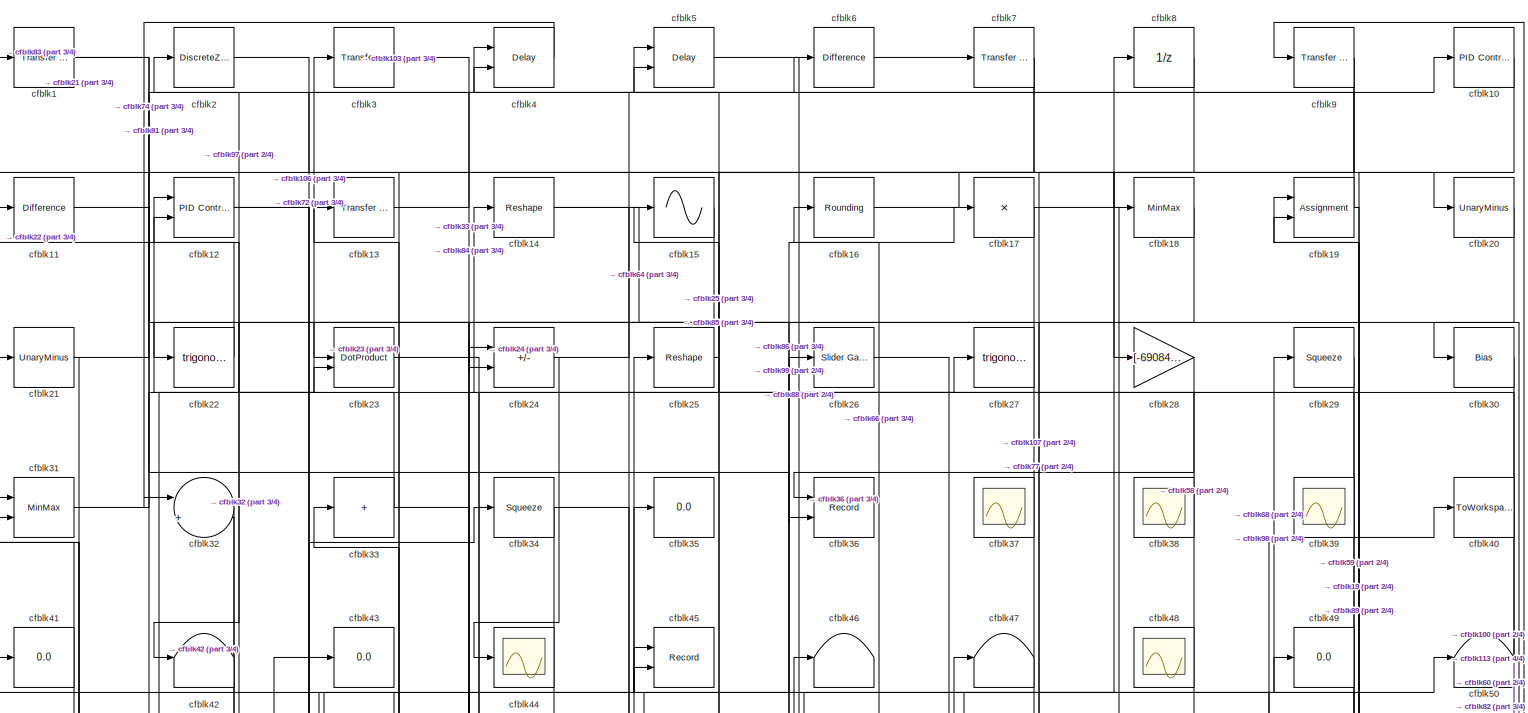
[diagram: root canvas - part 1/4, full width, top band]
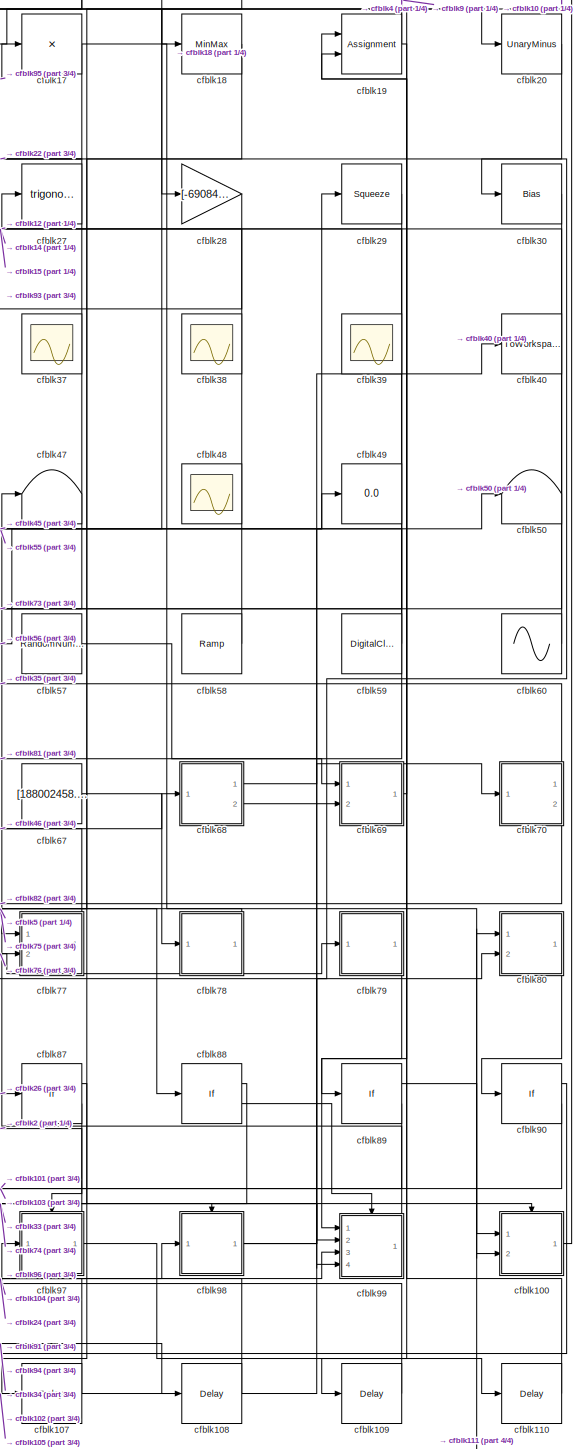
[diagram: root canvas - part 2/4, right side, full height]
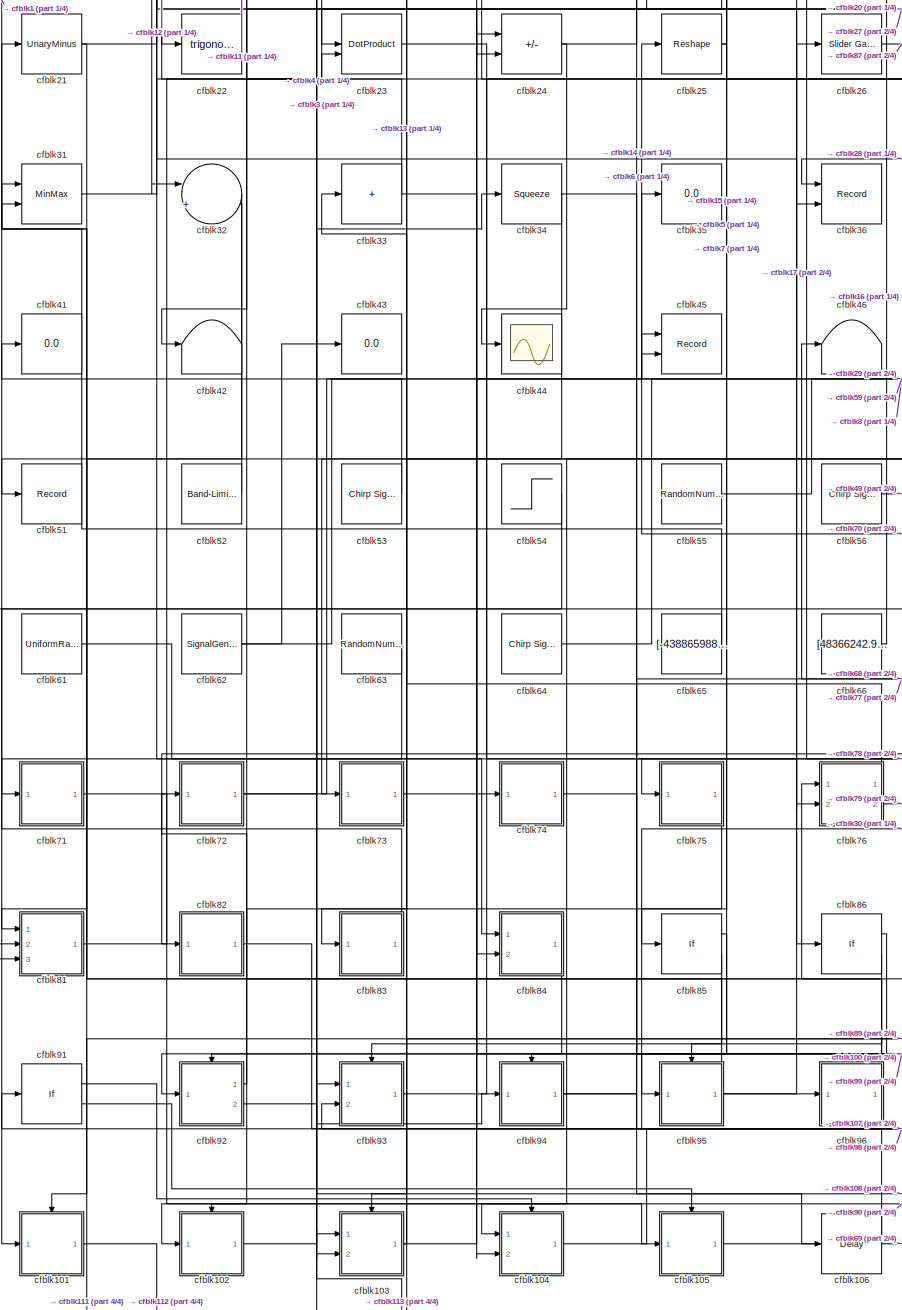
[diagram: root canvas - part 3/4, left side, full height]
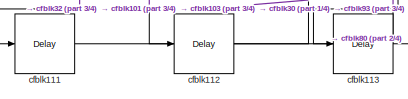
[diagram: root canvas - part 4/4, bottom left region]
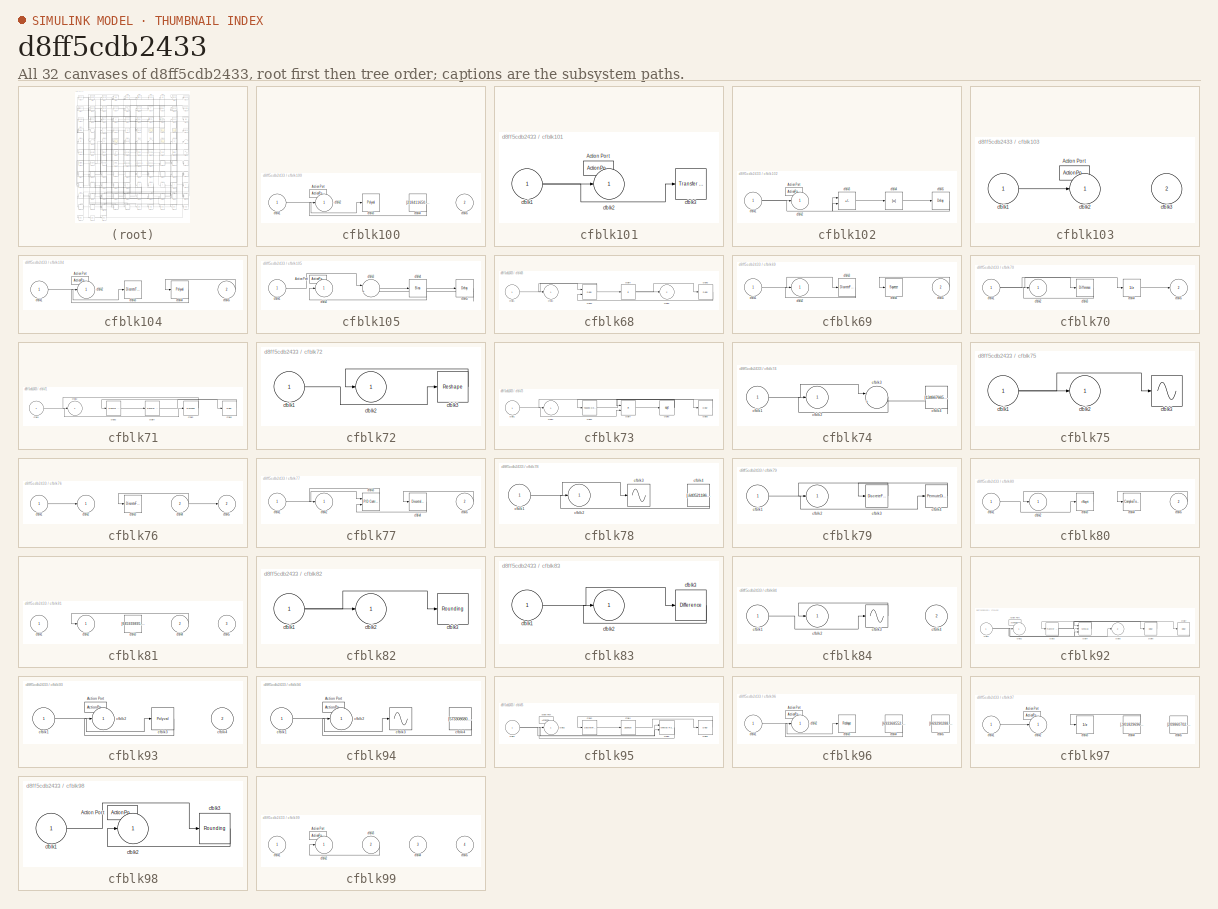
[diagram: thumbnail index - all 32 canvases of the model, root first then tree order]
MODEL slx_d8ff5cdb2433
KIND model
CONFIG AbsTol = auto
CONFIG EnableMultiTasking = off
CONFIG FixedStep = auto
CONFIG MaxStep = auto
CONFIG MinStep = auto
CONFIG RelTol = 1e-3
CONFIG SampleTimeConstraint = Unconstrained
CONFIG SolverName = VariableStepAuto
CONFIG StartTime = 0.0
CONFIG StopTime = 10.0
BLOCK [Reference] cfblk1  REF=simulink/Discrete/Transfer Fcn
First Order
  Ports = [1, 1]
  SourceBlock = simulink/Discrete/Transfer Fcn\nFirst Order
  SourceProductBaseCode = SL
  SourceType = First Order Transfer Fcn
BLOCK [Reference] cfblk10  REF=slpidlib/PID Controller
  Ports = [1, 1]
  SourceBlock = slpidlib/PID Controller
  SourceProductBaseCode = SL
  SourceType = PID 1dof
BLOCK [SubSystem] cfblk100
  Ports = [2, 1, 0, 0, 0, 0, 0, 1]
  RequestExecContextInheritance = off
  TreatAsAtomicUnit = on
BLOCK [ActionPort] cfblk100/Action Port
  ActionPortLabel = if(u1 >= 0)
BLOCK [Inport] cfblk100/cfblk1
BLOCK [Outport] cfblk100/cfblk2
BLOCK [Polyval] cfblk100/cfblk3
  Coefs = [ +2.081618890e-019, -1.441693666e-014, +4.719686976e-010, -8.536869453e-006, +1.621573104e-001, -8.087801117e+001 ]
BLOCK [Constant] cfblk100/cfblk4
  SampleTime = 1
  Value = [218411650.649199]
BLOCK [Inport] cfblk100/cfblk5
  Port = 2
BLOCK [SubSystem] cfblk101
  Ports = [1, 1, 0, 0, 0, 0, 0, 1]
  RequestExecContextInheritance = off
  TreatAsAtomicUnit = on
BLOCK [ActionPort] cfblk101/Action Port
  ActionPortLabel = else
BLOCK [Inport] cfblk101/cfblk1
BLOCK [Outport] cfblk101/cfblk2
BLOCK [Reference] cfblk101/cfblk3  REF=simulink/Discrete/Transfer Fcn
Real Zero
  Ports = [1, 1]
  SourceBlock = simulink/Discrete/Transfer Fcn\nReal Zero
  SourceProductBaseCode = SL
  SourceType = Transfer Fcn Real Zero
BLOCK [SubSystem] cfblk102
  Ports = [1, 1, 0, 0, 0, 0, 0, 1]
  RequestExecContextInheritance = off
  TreatAsAtomicUnit = on
BLOCK [ActionPort] cfblk102/Action Port
  ActionPortLabel = if(u1 >= 0)
BLOCK [Inport] cfblk102/cfblk1
BLOCK [Outport] cfblk102/cfblk2
BLOCK [Sum] cfblk102/cfblk3
  IconShape = rectangular
  Inputs = +-
  Ports = [2, 1]
BLOCK [Abs] cfblk102/cfblk4
  SaturateOnIntegerOverflow = off
BLOCK [Delay] cfblk102/cfblk5
  InputPortMap = u0
  Ports = [1, 1]
BLOCK [SubSystem] cfblk103
  Ports = [2, 1, 0, 0, 0, 0, 0, 1]
  RequestExecContextInheritance = off
  TreatAsAtomicUnit = on
BLOCK [ActionPort] cfblk103/Action Port
  ActionPortLabel = else
BLOCK [Inport] cfblk103/cfblk1
BLOCK [Outport] cfblk103/cfblk2
BLOCK [Inport] cfblk103/cfblk3
  Port = 2
BLOCK [SubSystem] cfblk104
  Ports = [2, 1, 0, 0, 0, 0, 0, 1]
  RequestExecContextInheritance = off
  TreatAsAtomicUnit = on
BLOCK [ActionPort] cfblk104/Action Port
  ActionPortLabel = if(u1 >= 0)
BLOCK [Inport] cfblk104/cfblk1
BLOCK [Outport] cfblk104/cfblk2
BLOCK [DiscreteTransferFcn] cfblk104/cfblk3
  InputPortMap = u0
  Ports = [1, 1]
BLOCK [Polyval] cfblk104/cfblk4
  Coefs = [ +2.081618890e-019, -1.441693666e-014, +4.719686976e-010, -8.536869453e-006, +1.621573104e-001, -8.087801117e+001 ]
BLOCK [Inport] cfblk104/cfblk5
  Port = 2
BLOCK [SubSystem] cfblk105
  Ports = [1, 1, 0, 0, 0, 0, 0, 1]
  RequestExecContextInheritance = off
  TreatAsAtomicUnit = on
BLOCK [ActionPort] cfblk105/Action Port
  ActionPortLabel = else
BLOCK [Inport] cfblk105/cfblk1
BLOCK [Outport] cfblk105/cfblk2
BLOCK [Sum] cfblk105/cfblk3
  Inputs = |++
  Ports = [2, 1]
BLOCK [Bias] cfblk105/cfblk4
  Bias = [586134376.384621]
  SaturateOnIntegerOverflow = off
BLOCK [Delay] cfblk105/cfblk5
  InputPortMap = u0
  Ports = [1, 1]
BLOCK [Delay] cfblk106
  InputPortMap = u0
  Ports = [1, 1]
  SampleTime = 1
BLOCK [Delay] cfblk107
  InputPortMap = u0
  Ports = [1, 1]
  SampleTime = 1
BLOCK [Delay] cfblk108
  InputPortMap = u0
  Ports = [1, 1]
  SampleTime = 1
BLOCK [Delay] cfblk109
  InputPortMap = u0
  Ports = [1, 1]
  SampleTime = 1
BLOCK [Reference] cfblk11  REF=simulink/Discrete/Difference
  Ports = [1, 1]
  SourceBlock = simulink/Discrete/Difference
  SourceProductBaseCode = SL
  SourceType = Difference
BLOCK [Delay] cfblk110
  InputPortMap = u0
  Ports = [1, 1]
  SampleTime = 1
BLOCK [Delay] cfblk111
  InputPortMap = u0
  Ports = [1, 1]
  SampleTime = 1
BLOCK [Delay] cfblk112
  InputPortMap = u0
  Ports = [1, 1]
  SampleTime = 1
BLOCK [Delay] cfblk113
  InputPortMap = u0
  Ports = [1, 1]
  SampleTime = 1
BLOCK [Reference] cfblk12  REF=slpidlib/PID Controller (2DOF)
  Ports = [2, 1]
  SourceBlock = slpidlib/PID Controller (2DOF)
  SourceProductBaseCode = SL
  SourceType = PID 2dof
BLOCK [Reference] cfblk13  REF=simulink/Discrete/Transfer Fcn
Real Zero
  Ports = [1, 1]
  SourceBlock = simulink/Discrete/Transfer Fcn\nReal Zero
  SourceProductBaseCode = SL
  SourceType = Transfer Fcn Real Zero
BLOCK [Reshape] cfblk14
  Ports = [1, 1]
BLOCK [Sin] cfblk15
  Ports = [1, 1]
  SampleTime = 0
  TimeSource = Use external signal
BLOCK [Rounding] cfblk16
BLOCK [Product] cfblk17
  Inputs = *
  Ports = [1, 1]
BLOCK [MinMax] cfblk18
  Function = max
  Ports = [1, 1]
BLOCK [Assignment] cfblk19
  DiagnosticForDimensions = Warning
  IndexOptions = Index vector (dialog)
  Indices = 1
  OutputSizes = 1
  Ports = [2, 1]
BLOCK [DiscreteZeroPole] cfblk2
  Gain = 1
  Poles = [0 0.5]
BLOCK [UnaryMinus] cfblk20
BLOCK [UnaryMinus] cfblk21
BLOCK [Trigonometry] cfblk22
  Ports = [1, 1]
BLOCK [DotProduct] cfblk23
  OutDataTypeStr = Inherit: Inherit via internal rule
BLOCK [Sum] cfblk24
  IconShape = rectangular
  Inputs = +-
  Ports = [2, 1]
BLOCK [Reshape] cfblk25
  Ports = [1, 1]
BLOCK [Reference] cfblk26  REF=simulink/Math
Operations/Slider
Gain
  Ports = [1, 1]
  SourceBlock = simulink/Math\nOperations/Slider\nGain
  SourceProductBaseCode = SL
  SourceType = Slider Gain
BLOCK [Trigonometry] cfblk27
  Ports = [1, 1]
BLOCK [Gain] cfblk28
  Gain = [-690841397.584231]
BLOCK [Squeeze] cfblk29
BLOCK [Reference] cfblk3  REF=simulink/Discrete/Transfer Fcn
Lead or Lag
  Ports = [1, 1]
  SourceBlock = simulink/Discrete/Transfer Fcn\nLead or Lag
  SourceProductBaseCode = SL
  SourceType = Lead or Lag Compensator
BLOCK [Bias] cfblk30
  Bias = [-540206090.323763]
  SaturateOnIntegerOverflow = off
BLOCK [MinMax] cfblk31
  Inputs = 2
  Ports = [2, 1]
BLOCK [Sum] cfblk32
  Inputs = |++
  Ports = [2, 1]
BLOCK [Sum] cfblk33
  IconShape = rectangular
  Inputs = +
  Ports = [1, 1]
BLOCK [Squeeze] cfblk34
BLOCK [Display] cfblk35
  Decimation = 1
  Ports = [1]
BLOCK [Record] cfblk36
  CompatibilityTag = XY
  FileSettingsInternal = {"entries":[{"content":{"excelSettings":{"content":{},"type":"Streamout.ExcelSettings"}},"type":"Streamout.FileSettingStorage","uuid":"f60e0e7e-50e4-411b-8857-de84289db194"}],"packageUris":["http://schema.mathworks.com/mf0/streamout_blocks/R2020a"],"version":"1.0"}
  Layout = [1 1]
  Ports = [2]
  SignalsInternal = {"entries":[{"content":{"signals":[{"content":{"blockPath":["sampleModel203/cfblk36"],"channel":[],"dimensions":[1],"domain":"sampleModel203/cfblk36","lineColor":"#a2142f","plots":[1],"port":1,"sid":[""],"signalID":7736,"signalName":"cfblk28"},"type":"RecordBlkView.Signal","uuid":"ca01ba28-278a-4e59-8f68-9e270c9db018"},{"content":{"blockPath":["sampleModel203/cfblk36"],"channel":[],"dimensions":[1...<+382ch>
  VisualizationBindings = {"xyplotplugin":{"info":[{"series":[{"bindingParametersList":[{"parameter":"X-Axis","signalID":7736,"signalName":"cfblk28"},{"parameter":"Y-Axis","signalID":7740,"signalName":"cfblk1"}],"seriesID":62556}],"subplotID":1}]}}
BLOCK [Scope] cfblk37
  Floating = on
  NumInputPorts = 1
  Ports = []
BLOCK [Scope] cfblk38
  Floating = on
  NumInputPorts = 1
  Ports = []
BLOCK [Scope] cfblk39
  Floating = on
  NumInputPorts = 1
  Ports = []
BLOCK [Delay] cfblk4
  InputPortMap = u0,e6
  Ports = [2, 1]
  SampleTime = 1
  ShowEnablePort = on
BLOCK [ToWorkspace] cfblk40
  FixptAsFi = on
  MaxDataPoints = inf
  Ports = [1]
  SampleTime = -1
  SaveFormat = Timeseries
  VariableName = svbpxuz
BLOCK [Display] cfblk41
  Decimation = 1
  Ports = [1]
BLOCK [Terminator] cfblk42
BLOCK [Display] cfblk43
  Decimation = 1
  Ports = [1]
BLOCK [Scope] cfblk44
  Floating = off
  NumInputPorts = 1
  Ports = [1]
BLOCK [Record] cfblk45
  CompatibilityTag = XY
  FileSettingsInternal = {"entries":[{"content":{"excelSettings":{"content":{},"type":"Streamout.ExcelSettings"}},"type":"Streamout.FileSettingStorage","uuid":"4e68081a-3d5f-4c48-8c75-22d124a70274"}],"packageUris":["http://schema.mathworks.com/mf0/streamout_blocks/R2020a"],"version":"1.0"}
  Layout = [1 1]
  Ports = [2]
  SignalsInternal = {"entries":[{"content":{"signals":[{"content":{"blockPath":["sampleModel203/cfblk45"],"channel":[],"dimensions":[1],"domain":"sampleModel203/cfblk45","lineColor":"#a2142f","plots":[1],"port":1,"sid":[""],"signalID":7744,"signalName":"cfblk59"},"type":"RecordBlkView.Signal","uuid":"9405ce42-ea04-4003-ae79-2d43fde3a1a3"},{"content":{"blockPath":["sampleModel203/cfblk45"],"channel":[],"dimensions":[1...<+384ch>
  VisualizationBindings = {"xyplotplugin":{"info":[{"series":[{"bindingParametersList":[{"parameter":"X-Axis","signalID":7744,"signalName":"cfblk59"},{"parameter":"Y-Axis","signalID":7748,"signalName":"cfblk103"}],"seriesID":22743}],"subplotID":1}]}}
BLOCK [Terminator] cfblk46
BLOCK [Terminator] cfblk47
BLOCK [Scope] cfblk48
  Floating = on
  NumInputPorts = 1
  Ports = []
BLOCK [Display] cfblk49
  Decimation = 1
  Ports = [1]
BLOCK [Delay] cfblk5
  InputPortMap = u0,e6
  Ports = [2, 1]
  SampleTime = 1
  ShowEnablePort = on
BLOCK [Terminator] cfblk50
BLOCK [Record] cfblk51
  FileSettingsInternal = {"entries":[{"content":{"excelSettings":{"content":{},"type":"Streamout.ExcelSettings"}},"type":"Streamout.FileSettingStorage","uuid":"15b467fb-187d-4d22-9db3-1ab9c270faad"}],"packageUris":["http://schema.mathworks.com/mf0/streamout_blocks/R2020a"],"version":"1.0"}
  Ports = [1]
  SignalsInternal = {"entries":[{"content":{"signals":[{"content":{"blockPath":["sampleModel203/cfblk51"],"channel":[],"dimensions":[1],"domain":"sampleModel203/cfblk51","lineColor":"#d95319","plots":[1],"port":1,"sid":[""],"signalID":7752,"signalName":"cfblk34"},"type":"RecordBlkView.Signal","uuid":"d294c60a-55e4-408c-9dbb-0466e6ab661d"}]},"type":"RecordBlkView.InputSignals","uuid":"40f0c118-43a9-4255-9852-1e3ccaa29...<+97ch>
  VisualizationBindings = {"sparklinesplugin":{"info":[{"bindingParametersList":[],"subplotID":1}]}}
BLOCK [Reference] cfblk52  REF=simulink/Sources/Band-Limited
White Noise
  Ports = [0, 1]
  SourceBlock = simulink/Sources/Band-Limited\nWhite Noise
  SourceProductBaseCode = SL
  SourceType = Band-Limited White Noise.
BLOCK [Reference] cfblk53  REF=simulink/Sources/Chirp Signal
  Ports = [0, 1]
  SourceBlock = simulink/Sources/Chirp Signal
  SourceProductBaseCode = SL
  SourceType = chirp
BLOCK [Step] cfblk54
  After = [-476848103.359649]
  Before = [-843360789.069054]
  SampleTime = 0
  Time = [20.000000]
BLOCK [RandomNumber] cfblk55
  Mean = [-65297.782331]
  SampleTime = 0.1
  Seed = [385991581.000000]
  Variance = [65306.372264]
BLOCK [Reference] cfblk56  REF=simulink/Sources/Chirp Signal
  Ports = [0, 1]
  SourceBlock = simulink/Sources/Chirp Signal
  SourceProductBaseCode = SL
  SourceType = chirp
BLOCK [RandomNumber] cfblk57
  Mean = [-91246.864257]
  SampleTime = 0.1
  Seed = [558666441.000000]
  Variance = [79928.069282]
BLOCK [Reference] cfblk58  REF=simulink/Sources/Ramp
  Ports = [0, 1]
  SourceBlock = simulink/Sources/Ramp
  SourceProductBaseCode = SL
  SourceType = Ramp
BLOCK [DigitalClock] cfblk59
BLOCK [Reference] cfblk6  REF=simulink/Discrete/Difference
  Ports = [1, 1]
  SourceBlock = simulink/Discrete/Difference
  SourceProductBaseCode = SL
  SourceType = Difference
BLOCK [Sin] cfblk60
  Amplitude = [174575589.111847]
  Bias = [828450703.663785]
  Ports = [0, 1]
  SampleTime = 0
BLOCK [UniformRandomNumber] cfblk61
  Maximum = [9985745363.813883]
  Minimum = [-3984938994.437546]
  SampleTime = 0.1
  Seed = [61048124.000000]
BLOCK [SignalGenerator] cfblk62
  Amplitude = [661382028.748388]
  Ports = [0, 1]
BLOCK [RandomNumber] cfblk63
  Mean = [68679.092344]
  SampleTime = 0.1
  Seed = [966951569.000000]
  Variance = [85378.887628]
BLOCK [Reference] cfblk64  REF=simulink/Sources/Chirp Signal
  Ports = [0, 1]
  SourceBlock = simulink/Sources/Chirp Signal
  SourceProductBaseCode = SL
  SourceType = chirp
BLOCK [Constant] cfblk65
  SampleTime = 1
  Value = [-438865988.482538]
BLOCK [Constant] cfblk66
  SampleTime = 1
  Value = [48366242.935575]
BLOCK [Constant] cfblk67
  SampleTime = 1
  Value = [188002458.199918]
BLOCK [SubSystem] cfblk68
  Ports = [1, 2]
  RequestExecContextInheritance = off
BLOCK [Inport] cfblk68/cfblk1
BLOCK [Outport] cfblk68/cfblk2
BLOCK [Delay] cfblk68/cfblk3
  InputPortMap = u0,e6
  Ports = [2, 1]
  SampleTime = 1
  ShowEnablePort = on
BLOCK [Sum] cfblk68/cfblk4
  IconShape = rectangular
  Inputs = +
  Ports = [1, 1]
BLOCK [Outport] cfblk68/cfblk5
  Port = 2
BLOCK [Delay] cfblk68/cfblk6
  InputPortMap = u0
  Ports = [1, 1]
  SampleTime = 1
BLOCK [SubSystem] cfblk69
  Ports = [2, 1]
  RequestExecContextInheritance = off
BLOCK [Inport] cfblk69/cfblk1
BLOCK [Outport] cfblk69/cfblk2
BLOCK [DiscreteFir] cfblk69/cfblk3
  InputPortMap = u0
  OutputPortMap = o0
  Ports = [1, 1]
  SampleTime = 1
BLOCK [Squeeze] cfblk69/cfblk4
BLOCK [Inport] cfblk69/cfblk5
  Port = 2
BLOCK [Reference] cfblk7  REF=simulink/Discrete/Transfer Fcn
Real Zero
  Ports = [1, 1]
  SourceBlock = simulink/Discrete/Transfer Fcn\nReal Zero
  SourceProductBaseCode = SL
  SourceType = Transfer Fcn Real Zero
BLOCK [SubSystem] cfblk70
  Ports = [1, 2]
  RequestExecContextInheritance = off
BLOCK [Inport] cfblk70/cfblk1
BLOCK [Outport] cfblk70/cfblk2
BLOCK [Reference] cfblk70/cfblk3  REF=simulink/Discrete/Difference
  Ports = [1, 1]
  SourceBlock = simulink/Discrete/Difference
  SourceProductBaseCode = SL
  SourceType = Difference
BLOCK [UnitDelay] cfblk70/cfblk4
  HasFrameUpgradeWarning = on
BLOCK [Outport] cfblk70/cfblk5
  Port = 2
BLOCK [SubSystem] cfblk71
  Ports = [1, 1]
  RequestExecContextInheritance = off
BLOCK [Inport] cfblk71/cfblk1
BLOCK [Outport] cfblk71/cfblk2
BLOCK [Reference] cfblk71/cfblk3  REF=simulink/Discrete/Transfer Fcn
Real Zero
  Ports = [1, 1]
  SourceBlock = simulink/Discrete/Transfer Fcn\nReal Zero
  SourceProductBaseCode = SL
  SourceType = Transfer Fcn Real Zero
BLOCK [Reference] cfblk71/cfblk4  REF=simulink/Discrete/Transfer Fcn
First Order
  Ports = [1, 1]
  SourceBlock = simulink/Discrete/Transfer Fcn\nFirst Order
  SourceProductBaseCode = SL
  SourceType = First Order Transfer Fcn
BLOCK [Reshape] cfblk71/cfblk5
  Ports = [1, 1]
BLOCK [Delay] cfblk71/cfblk6
  InputPortMap = u0
  Ports = [1, 1]
  SampleTime = 1
BLOCK [SubSystem] cfblk72
  Ports = [1, 1]
  RequestExecContextInheritance = off
BLOCK [Inport] cfblk72/cfblk1
BLOCK [Outport] cfblk72/cfblk2
BLOCK [Reshape] cfblk72/cfblk3
  Ports = [1, 1]
BLOCK [SubSystem] cfblk73
  Ports = [1, 1]
  RequestExecContextInheritance = off
BLOCK [Inport] cfblk73/cfblk1
BLOCK [Outport] cfblk73/cfblk2
BLOCK [Reference] cfblk73/cfblk3  REF=simulink/Discrete/Tapped Delay
  Ports = [1, 1]
  SourceBlock = simulink/Discrete/Tapped Delay
  SourceProductBaseCode = SL
  SourceType = Tapped Delay Line
BLOCK [Product] cfblk73/cfblk4
  Ports = [2, 1]
BLOCK [Sqrt] cfblk73/cfblk5
BLOCK [Delay] cfblk73/cfblk6
  InputPortMap = u0
  Ports = [1, 1]
  SampleTime = 1
BLOCK [SubSystem] cfblk74
  Ports = [1, 1]
  RequestExecContextInheritance = off
BLOCK [Inport] cfblk74/cfblk1
BLOCK [Outport] cfblk74/cfblk2
BLOCK [Sum] cfblk74/cfblk3
  Inputs = |++
  Ports = [2, 1]
BLOCK [Constant] cfblk74/cfblk4
  SampleTime = 1
  Value = [134667665.474068]
BLOCK [SubSystem] cfblk75
  Ports = [1, 1]
  RequestExecContextInheritance = off
BLOCK [Inport] cfblk75/cfblk1
BLOCK [Outport] cfblk75/cfblk2
BLOCK [Sin] cfblk75/cfblk3
  Ports = [1, 1]
  SampleTime = 0
  TimeSource = Use external signal
BLOCK [SubSystem] cfblk76
  Ports = [2, 2]
  RequestExecContextInheritance = off
BLOCK [Inport] cfblk76/cfblk1
BLOCK [Outport] cfblk76/cfblk2
BLOCK [DiscreteFilter] cfblk76/cfblk3
  InputPortMap = u0
  Ports = [1, 1]
  SampleTime = 1
BLOCK [Inport] cfblk76/cfblk4
  Port = 2
BLOCK [Outport] cfblk76/cfblk5
  Port = 2
BLOCK [SubSystem] cfblk77
  Ports = [2, 1]
  RequestExecContextInheritance = off
BLOCK [Inport] cfblk77/cfblk1
BLOCK [Outport] cfblk77/cfblk2
BLOCK [Reference] cfblk77/cfblk3  REF=slpidlib/PID Controller (2DOF)
  Ports = [2, 1]
  SourceBlock = slpidlib/PID Controller (2DOF)
  SourceProductBaseCode = SL
  SourceType = PID 2dof
BLOCK [DiscreteIntegrator] cfblk77/cfblk4
  ICPrevOutput = DiscIntNeverNeededParam
  ICPrevScaledInput = DiscIntNeverNeededParam
  InitialConditionSetting = Auto
  Ports = [1, 1]
BLOCK [Inport] cfblk77/cfblk5
  Port = 2
BLOCK [SubSystem] cfblk78
  Ports = [1, 1]
  RequestExecContextInheritance = off
BLOCK [Inport] cfblk78/cfblk1
BLOCK [Outport] cfblk78/cfblk2
BLOCK [Sin] cfblk78/cfblk3
  Ports = [1, 1]
  SampleTime = 0
  TimeSource = Use external signal
BLOCK [Constant] cfblk78/cfblk4
  SampleTime = 1
  Value = [-640521186.621114]
BLOCK [SubSystem] cfblk79
  Ports = [1, 1]
  RequestExecContextInheritance = off
BLOCK [Inport] cfblk79/cfblk1
BLOCK [Outport] cfblk79/cfblk2
BLOCK [DiscreteFilter] cfblk79/cfblk3
  InputPortMap = u0
  Ports = [1, 1]
  SampleTime = 1
BLOCK [PermuteDimensions] cfblk79/cfblk4
BLOCK [UnitDelay] cfblk8
  HasFrameUpgradeWarning = on
BLOCK [SubSystem] cfblk80
  Ports = [2, 1]
  RequestExecContextInheritance = off
BLOCK [Inport] cfblk80/cfblk1
BLOCK [Outport] cfblk80/cfblk2
BLOCK [Sqrt] cfblk80/cfblk3
  AlgorithmType = Newton-Raphson
  Operator = rSqrt
BLOCK [ComplexToRealImag] cfblk80/cfblk4
  Ports = [1, 2]
BLOCK [Inport] cfblk80/cfblk5
  Port = 2
BLOCK [SubSystem] cfblk81
  Ports = [3, 1]
  RequestExecContextInheritance = off
BLOCK [Inport] cfblk81/cfblk1
BLOCK [Outport] cfblk81/cfblk2
BLOCK [Constant] cfblk81/cfblk3
  SampleTime = 1
  Value = [685939895.207398]
BLOCK [Inport] cfblk81/cfblk4
  Port = 2
BLOCK [Inport] cfblk81/cfblk5
  Port = 3
BLOCK [SubSystem] cfblk82
  Ports = [1, 1]
  RequestExecContextInheritance = off
BLOCK [Inport] cfblk82/cfblk1
BLOCK [Outport] cfblk82/cfblk2
BLOCK [Rounding] cfblk82/cfblk3
BLOCK [SubSystem] cfblk83
  Ports = [1, 1]
  RequestExecContextInheritance = off
BLOCK [Inport] cfblk83/cfblk1
BLOCK [Outport] cfblk83/cfblk2
BLOCK [Reference] cfblk83/cfblk3  REF=simulink/Discrete/Difference
  Ports = [1, 1]
  SourceBlock = simulink/Discrete/Difference
  SourceProductBaseCode = SL
  SourceType = Difference
BLOCK [SubSystem] cfblk84
  Ports = [2, 1]
  RequestExecContextInheritance = off
BLOCK [Inport] cfblk84/cfblk1
BLOCK [Outport] cfblk84/cfblk2
BLOCK [Sin] cfblk84/cfblk3
  Ports = [1, 1]
  SampleTime = 0
  TimeSource = Use external signal
BLOCK [Inport] cfblk84/cfblk4
  Port = 2
BLOCK [If] cfblk85
  IfExpression = u1 >= 0
  Ports = [1, 2]
  SampleTime = 1
BLOCK [If] cfblk86
  IfExpression = u1 >= 0
  Ports = [1, 2]
  SampleTime = 1
BLOCK [If] cfblk87
  IfExpression = u1 >= 0
  Ports = [1, 2]
  SampleTime = 1
BLOCK [If] cfblk88
  IfExpression = u1 >= 0
  Ports = [1, 2]
  SampleTime = 1
BLOCK [If] cfblk89
  IfExpression = u1 >= 0
  Ports = [1, 2]
  SampleTime = 1
BLOCK [Reference] cfblk9  REF=simulink/Discrete/Transfer Fcn
Lead or Lag
  Ports = [1, 1]
  SourceBlock = simulink/Discrete/Transfer Fcn\nLead or Lag
  SourceProductBaseCode = SL
  SourceType = Lead or Lag Compensator
BLOCK [If] cfblk90
  IfExpression = u1 >= 0
  Ports = [1, 2]
  SampleTime = 1
BLOCK [If] cfblk91
  IfExpression = u1 >= 0
  Ports = [1, 2]
  SampleTime = 1
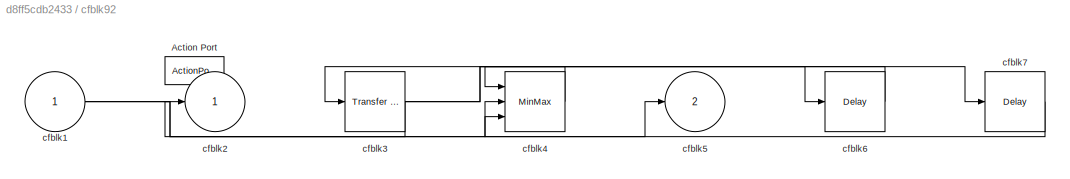
BLOCK [SubSystem] cfblk92
  Ports = [1, 2, 0, 0, 0, 0, 0, 1]
  RequestExecContextInheritance = off
  TreatAsAtomicUnit = on
BLOCK [ActionPort] cfblk92/Action Port
  ActionPortLabel = if(u1 >= 0)
BLOCK [Inport] cfblk92/cfblk1
BLOCK [Outport] cfblk92/cfblk2
BLOCK [Reference] cfblk92/cfblk3  REF=simulink/Discrete/Transfer Fcn
Lead or Lag
  Ports = [1, 1]
  SourceBlock = simulink/Discrete/Transfer Fcn\nLead or Lag
  SourceProductBaseCode = SL
  SourceType = Lead or Lag Compensator
BLOCK [MinMax] cfblk92/cfblk4
  Inputs = 3
  Ports = [3, 1]
BLOCK [Outport] cfblk92/cfblk5
  Port = 2
BLOCK [Delay] cfblk92/cfblk6
  InputPortMap = u0
  Ports = [1, 1]
BLOCK [Delay] cfblk92/cfblk7
  InputPortMap = u0
  Ports = [1, 1]
BLOCK [SubSystem] cfblk93
  Ports = [2, 1, 0, 0, 0, 0, 0, 1]
  RequestExecContextInheritance = off
  TreatAsAtomicUnit = on
BLOCK [ActionPort] cfblk93/Action Port
  ActionPortLabel = else
BLOCK [Inport] cfblk93/cfblk1
BLOCK [Outport] cfblk93/cfblk2
BLOCK [Polyval] cfblk93/cfblk3
  Coefs = [ +2.081618890e-019, -1.441693666e-014, +4.719686976e-010, -8.536869453e-006, +1.621573104e-001, -8.087801117e+001 ]
BLOCK [Inport] cfblk93/cfblk4
  Port = 2
BLOCK [SubSystem] cfblk94
  Ports = [1, 1, 0, 0, 0, 0, 0, 1]
  RequestExecContextInheritance = off
  TreatAsAtomicUnit = on
BLOCK [ActionPort] cfblk94/Action Port
  ActionPortLabel = if(u1 >= 0)
BLOCK [Inport] cfblk94/cfblk1
BLOCK [Outport] cfblk94/cfblk2
BLOCK [Sin] cfblk94/cfblk3
  Ports = [1, 1]
  SampleTime = 0
  TimeSource = Use external signal
BLOCK [Constant] cfblk94/cfblk4
  SampleTime = 1
  Value = [573308680.084131]
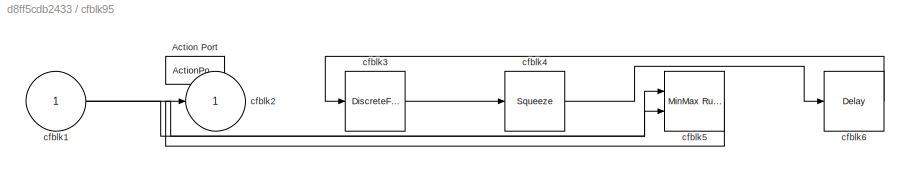
BLOCK [SubSystem] cfblk95
  Ports = [1, 1, 0, 0, 0, 0, 0, 1]
  RequestExecContextInheritance = off
  TreatAsAtomicUnit = on
BLOCK [ActionPort] cfblk95/Action Port
  ActionPortLabel = else
BLOCK [Inport] cfblk95/cfblk1
BLOCK [Outport] cfblk95/cfblk2
BLOCK [DiscreteFir] cfblk95/cfblk3
  InputPortMap = u0
  OutputPortMap = o0
  Ports = [1, 1]
BLOCK [Squeeze] cfblk95/cfblk4
BLOCK [Reference] cfblk95/cfblk5  REF=simulink/Math
Operations/MinMax
Running
Resettable
  Ports = [2, 1]
  SourceBlock = simulink/Math\nOperations/MinMax\nRunning\nResettable
  SourceProductBaseCode = SL
  SourceType = MinMax Running Resettable
BLOCK [Delay] cfblk95/cfblk6
  InputPortMap = u0
  Ports = [1, 1]
BLOCK [SubSystem] cfblk96
  Ports = [1, 1, 0, 0, 0, 0, 0, 1]
  RequestExecContextInheritance = off
  TreatAsAtomicUnit = on
BLOCK [ActionPort] cfblk96/Action Port
  ActionPortLabel = if(u1 >= 0)
BLOCK [Inport] cfblk96/cfblk1
BLOCK [Outport] cfblk96/cfblk2
BLOCK [Reshape] cfblk96/cfblk3
  Ports = [1, 1]
BLOCK [Constant] cfblk96/cfblk4
  SampleTime = 1
  Value = [693368552.778145]
BLOCK [Constant] cfblk96/cfblk5
  SampleTime = 1
  Value = [869290288.110064]
BLOCK [SubSystem] cfblk97
  Ports = [1, 1, 0, 0, 0, 0, 0, 1]
  RequestExecContextInheritance = off
  TreatAsAtomicUnit = on
BLOCK [ActionPort] cfblk97/Action Port
  ActionPortLabel = else
BLOCK [Inport] cfblk97/cfblk1
BLOCK [Outport] cfblk97/cfblk2
BLOCK [UnitDelay] cfblk97/cfblk3
  HasFrameUpgradeWarning = on
  SampleTime = -1
BLOCK [Constant] cfblk97/cfblk4
  SampleTime = 1
  Value = [-901829696.592009]
BLOCK [Constant] cfblk97/cfblk5
  SampleTime = 1
  Value = [209860702.377779]
BLOCK [SubSystem] cfblk98
  Ports = [1, 1, 0, 0, 0, 0, 0, 1]
  RequestExecContextInheritance = off
  TreatAsAtomicUnit = on
BLOCK [ActionPort] cfblk98/Action Port
  ActionPortLabel = if(u1 >= 0)
BLOCK [Inport] cfblk98/cfblk1
BLOCK [Outport] cfblk98/cfblk2
BLOCK [Rounding] cfblk98/cfblk3
BLOCK [SubSystem] cfblk99
  Ports = [4, 1, 0, 0, 0, 0, 0, 1]
  RequestExecContextInheritance = off
  TreatAsAtomicUnit = on
BLOCK [ActionPort] cfblk99/Action Port
  ActionPortLabel = else
BLOCK [Inport] cfblk99/cfblk1
BLOCK [Outport] cfblk99/cfblk2
BLOCK [Inport] cfblk99/cfblk3
  Port = 2
BLOCK [Inport] cfblk99/cfblk4
  Port = 3
BLOCK [Inport] cfblk99/cfblk5
  Port = 4
LINE cfblk100/cfblk1:1 -> cfblk100/cfblk3:1
LINE cfblk100/cfblk4:1 -> cfblk100/cfblk2:1
LINE cfblk100:1 -> cfblk9:1
NET cfblk101/cfblk1:1 -> cfblk101/cfblk2:1, cfblk101/cfblk3:1
LINE cfblk101:1 -> cfblk112:1
NET cfblk102/cfblk1:1 -> cfblk102/cfblk2:1, cfblk102/cfblk3:1
LINE cfblk102/cfblk3:1 -> cfblk102/cfblk4:1
LINE cfblk102/cfblk4:1 -> cfblk102/cfblk5:1
LINE cfblk102/cfblk5:1 -> cfblk102/cfblk3:2
LINE cfblk102:1 -> cfblk34:1
LINE cfblk103/cfblk1:1 -> cfblk103/cfblk2:1
NET cfblk103:1 -> cfblk13:1, cfblk45:2
LINE cfblk104/cfblk1:1 -> cfblk104/cfblk3:1
LINE cfblk104/cfblk4:1 -> cfblk104/cfblk2:1
LINE cfblk104/cfblk5:1 -> cfblk104/cfblk4:1
LINE cfblk104:1 -> cfblk98:1
LINE cfblk105/cfblk1:1 -> cfblk105/cfblk3:1
LINE cfblk105/cfblk3:1 -> cfblk105/cfblk4:1
NET cfblk105/cfblk4:1 -> cfblk105/cfblk2:1, cfblk105/cfblk5:1
LINE cfblk105/cfblk5:1 -> cfblk105/cfblk3:2
LINE cfblk105:1 -> cfblk69:2
LINE cfblk106:1 -> cfblk93:2
LINE cfblk107:1 -> cfblk24:1
LINE cfblk108:1 -> cfblk91:1
LINE cfblk109:1 -> cfblk97:1
LINE cfblk10:1 -> cfblk89:1
LINE cfblk110:1 -> cfblk19:2
LINE cfblk111:1 -> cfblk80:1
LINE cfblk112:1 -> cfblk103:1
LINE cfblk113:1 -> cfblk93:1
LINE cfblk11:1 -> cfblk74:1
NET cfblk12:1 -> cfblk106:1, cfblk77:2
LINE cfblk13:1 -> cfblk10:1
NET cfblk14:1 -> cfblk86:1, cfblk99:4
LINE cfblk15:1 -> cfblk42:1
LINE cfblk16:1 -> cfblk20:1
NET cfblk17:1 -> cfblk100:1, cfblk104:2
LINE cfblk18:1 -> cfblk77:1
NET cfblk19:1 -> cfblk109:1, cfblk4:2
NET cfblk1:1 -> cfblk24:2, cfblk36:2
LINE cfblk20:1 -> cfblk23:1
NET cfblk21:1 -> cfblk5:1, cfblk71:1
LINE cfblk22:1 -> cfblk11:1
LINE cfblk23:1 -> cfblk76:2
NET cfblk24:1 -> cfblk44:1, cfblk6:1
NET cfblk25:1 -> cfblk5:2, cfblk95:1
LINE cfblk26:1 -> cfblk87:1
NET cfblk27:1 -> cfblk104:1, cfblk22:1
LINE cfblk28:1 -> cfblk36:1
LINE cfblk29:1 -> cfblk73:1
LINE cfblk2:1 -> cfblk18:1
LINE cfblk30:1 -> cfblk113:1
LINE cfblk31:1 -> cfblk23:2
LINE cfblk32:1 -> cfblk111:1
NET cfblk33:1 -> cfblk12:1, cfblk99:2
NET cfblk34:1 -> cfblk108:1, cfblk51:1
LINE cfblk3:1 -> cfblk84:2
LINE cfblk4:1 -> cfblk32:1
LINE cfblk52:1 -> cfblk32:2
LINE cfblk53:1 -> cfblk41:1
LINE cfblk54:1 -> cfblk101:1
LINE cfblk55:1 -> cfblk29:1
LINE cfblk56:1 -> cfblk49:1
LINE cfblk57:1 -> cfblk69:1
LINE cfblk58:1 -> cfblk14:1
NET cfblk59:1 -> cfblk15:1, cfblk45:1, cfblk81:3
LINE cfblk5:1 -> cfblk88:1
LINE cfblk60:1 -> cfblk12:2
LINE cfblk61:1 -> cfblk103:2
NET cfblk62:1 -> cfblk26:1, cfblk43:1
LINE cfblk63:1 -> cfblk81:1
LINE cfblk64:1 -> cfblk8:1
LINE cfblk65:1 -> cfblk21:1
LINE cfblk66:1 -> cfblk16:1
LINE cfblk67:1 -> cfblk78:1
LINE cfblk68/cfblk1:1 -> cfblk68/cfblk3:1
NET cfblk68/cfblk3:1 -> cfblk68/cfblk2:1, cfblk68/cfblk4:1
NET cfblk68/cfblk4:1 -> cfblk68/cfblk5:1, cfblk68/cfblk6:1
LINE cfblk68/cfblk6:1 -> cfblk68/cfblk3:2
LINE cfblk68:1 -> cfblk70:1
LINE cfblk68:2 -> cfblk40:1
LINE cfblk69/cfblk1:1 -> cfblk69/cfblk3:1
LINE cfblk69/cfblk3:1 -> cfblk69/cfblk2:1
LINE cfblk69/cfblk5:1 -> cfblk69/cfblk4:1
LINE cfblk69:1 -> cfblk19:1
LINE cfblk6:1 -> cfblk7:1
NET cfblk70/cfblk1:1 -> cfblk70/cfblk3:1, cfblk70/cfblk4:1
LINE cfblk70/cfblk3:1 -> cfblk70/cfblk2:1
LINE cfblk70/cfblk4:1 -> cfblk70/cfblk5:1
LINE cfblk70:1 -> cfblk35:1
LINE cfblk70:2 -> cfblk82:1
LINE cfblk71/cfblk1:1 -> cfblk71/cfblk5:1
LINE cfblk71/cfblk3:1 -> cfblk71/cfblk4:1
LINE cfblk71/cfblk4:1 -> cfblk71/cfblk6:1
LINE cfblk71/cfblk5:1 -> cfblk71/cfblk2:1
LINE cfblk71/cfblk6:1 -> cfblk71/cfblk3:1
LINE cfblk71:1 -> cfblk105:1
LINE cfblk72/cfblk1:1 -> cfblk72/cfblk3:1
LINE cfblk72/cfblk3:1 -> cfblk72/cfblk2:1
NET cfblk72:1 -> cfblk25:1, cfblk4:1
LINE cfblk73/cfblk1:1 -> cfblk73/cfblk4:2
LINE cfblk73/cfblk3:1 -> cfblk73/cfblk6:1
LINE cfblk73/cfblk4:1 -> cfblk73/cfblk5:1
NET cfblk73/cfblk5:1 -> cfblk73/cfblk2:1, cfblk73/cfblk3:1
LINE cfblk73/cfblk6:1 -> cfblk73/cfblk4:1
LINE cfblk73:1 -> cfblk84:1
LINE cfblk74/cfblk1:1 -> cfblk74/cfblk3:1
LINE cfblk74/cfblk3:1 -> cfblk74/cfblk2:1
LINE cfblk74/cfblk4:1 -> cfblk74/cfblk3:2
LINE cfblk74:1 -> cfblk100:2
NET cfblk75/cfblk1:1 -> cfblk75/cfblk2:1, cfblk75/cfblk3:1
LINE cfblk75:1 -> cfblk102:1
LINE cfblk76/cfblk1:1 -> cfblk76/cfblk2:1
NET cfblk76/cfblk4:1 -> cfblk76/cfblk3:1, cfblk76/cfblk5:1
LINE cfblk76:1 -> cfblk33:1
LINE cfblk76:2 -> cfblk79:1
LINE cfblk77/cfblk1:1 -> cfblk77/cfblk3:1
LINE cfblk77/cfblk3:1 -> cfblk77/cfblk2:1
LINE cfblk77/cfblk4:1 -> cfblk77/cfblk3:2
LINE cfblk77/cfblk5:1 -> cfblk77/cfblk4:1
LINE cfblk77:1 -> cfblk46:1
LINE cfblk78/cfblk1:1 -> cfblk78/cfblk3:1
LINE cfblk78/cfblk4:1 -> cfblk78/cfblk2:1
LINE cfblk78:1 -> cfblk75:1
LINE cfblk79/cfblk1:1 -> cfblk79/cfblk4:1
LINE cfblk79/cfblk3:1 -> cfblk79/cfblk2:1
LINE cfblk79/cfblk4:1 -> cfblk79/cfblk3:1
LINE cfblk79:1 -> cfblk99:1
NET cfblk7:1 -> cfblk81:2, cfblk85:1
LINE cfblk80/cfblk1:1 -> cfblk80/cfblk3:1
LINE cfblk80/cfblk3:1 -> cfblk80/cfblk2:1
LINE cfblk80/cfblk5:1 -> cfblk80/cfblk4:1
LINE cfblk80:1 -> cfblk90:1
LINE cfblk81/cfblk4:1 -> cfblk81/cfblk2:1
LINE cfblk81:1 -> cfblk3:1
NET cfblk82/cfblk1:1 -> cfblk82/cfblk2:1, cfblk82/cfblk3:1
LINE cfblk82:1 -> cfblk30:1
LINE cfblk83/cfblk1:1 -> cfblk83/cfblk3:1
LINE cfblk83/cfblk3:1 -> cfblk83/cfblk2:1
LINE cfblk83:1 -> cfblk1:1
LINE cfblk84/cfblk1:1 -> cfblk84/cfblk3:1
LINE cfblk84/cfblk3:1 -> cfblk84/cfblk2:1
LINE cfblk84:1 -> cfblk92:1
LINE cfblk85:1 -> cfblk92:ifaction
LINE cfblk85:2 -> cfblk93:ifaction
LINE cfblk86:1 -> cfblk94:ifaction
LINE cfblk86:2 -> cfblk95:ifaction
LINE cfblk87:1 -> cfblk96:ifaction
LINE cfblk87:2 -> cfblk97:ifaction
LINE cfblk88:1 -> cfblk98:ifaction
LINE cfblk88:2 -> cfblk99:ifaction
LINE cfblk89:1 -> cfblk100:ifaction
LINE cfblk89:2 -> cfblk101:ifaction
LINE cfblk8:1 -> cfblk83:1
LINE cfblk90:1 -> cfblk102:ifaction
LINE cfblk90:2 -> cfblk103:ifaction
LINE cfblk91:1 -> cfblk104:ifaction
LINE cfblk91:2 -> cfblk105:ifaction
NET cfblk92/cfblk1:1 -> cfblk92/cfblk4:2, cfblk92/cfblk5:1
NET cfblk92/cfblk3:1 -> cfblk92/cfblk2:1, cfblk92/cfblk6:1, cfblk92/cfblk7:1
LINE cfblk92/cfblk4:1 -> cfblk92/cfblk3:1
LINE cfblk92/cfblk6:1 -> cfblk92/cfblk4:1
LINE cfblk92/cfblk7:1 -> cfblk92/cfblk4:3
LINE cfblk92:1 -> cfblk72:1
LINE cfblk92:2 -> cfblk94:1
LINE cfblk93/cfblk1:1 -> cfblk93/cfblk3:1
LINE cfblk93/cfblk3:1 -> cfblk93/cfblk2:1
LINE cfblk93:1 -> cfblk27:1
LINE cfblk94/cfblk1:1 -> cfblk94/cfblk3:1
LINE cfblk94/cfblk4:1 -> cfblk94/cfblk2:1
NET cfblk94:1 -> cfblk68:1, cfblk99:3
NET cfblk95/cfblk1:1 -> cfblk95/cfblk5:1, cfblk95/cfblk5:2
LINE cfblk95/cfblk3:1 -> cfblk95/cfblk4:1
LINE cfblk95/cfblk4:1 -> cfblk95/cfblk6:1
LINE cfblk95/cfblk5:1 -> cfblk95/cfblk2:1
LINE cfblk95/cfblk6:1 -> cfblk95/cfblk3:1
NET cfblk95:1 -> cfblk17:1, cfblk31:1, cfblk96:1
LINE cfblk96/cfblk1:1 -> cfblk96/cfblk3:1
LINE cfblk96/cfblk4:1 -> cfblk96/cfblk2:1
NET cfblk96:1 -> cfblk31:2, cfblk76:1
LINE cfblk97/cfblk1:1 -> cfblk97/cfblk2:1
LINE cfblk97/cfblk4:1 -> cfblk97/cfblk3:1
NET cfblk97:1 -> cfblk110:1, cfblk2:1
LINE cfblk98/cfblk1:1 -> cfblk98/cfblk3:1
LINE cfblk98/cfblk3:1 -> cfblk98/cfblk2:1
NET cfblk98:1 -> cfblk50:1, cfblk80:2
LINE cfblk99/cfblk3:1 -> cfblk99/cfblk2:1
LINE cfblk99:1 -> cfblk47:1
NET cfblk9:1 -> cfblk107:1, cfblk28:1
note: NET lines group one-source signal fan-out (src -> all destinations, sorted); 1:1 wires keep LINE
